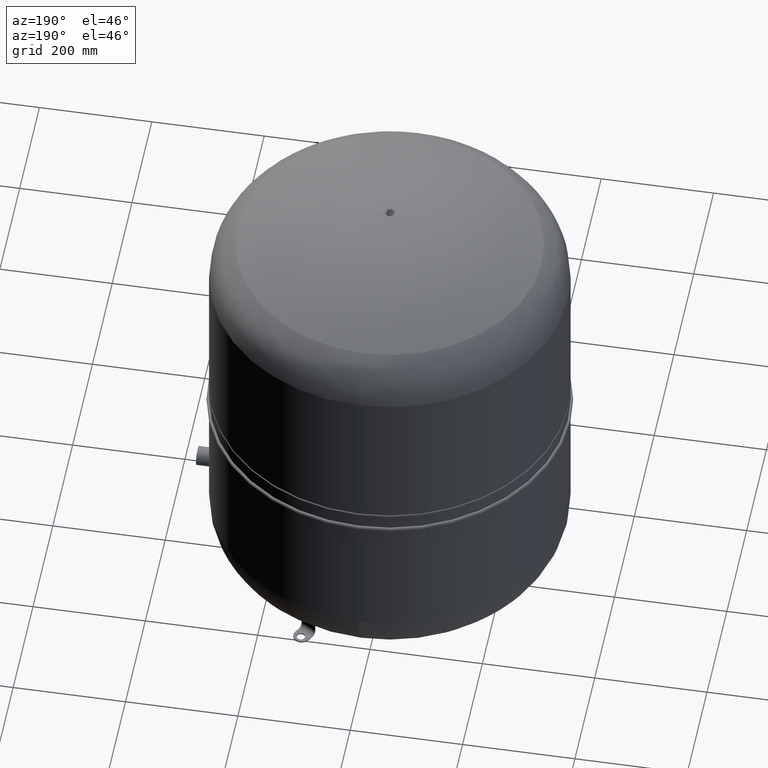
[diagram: clean part render]
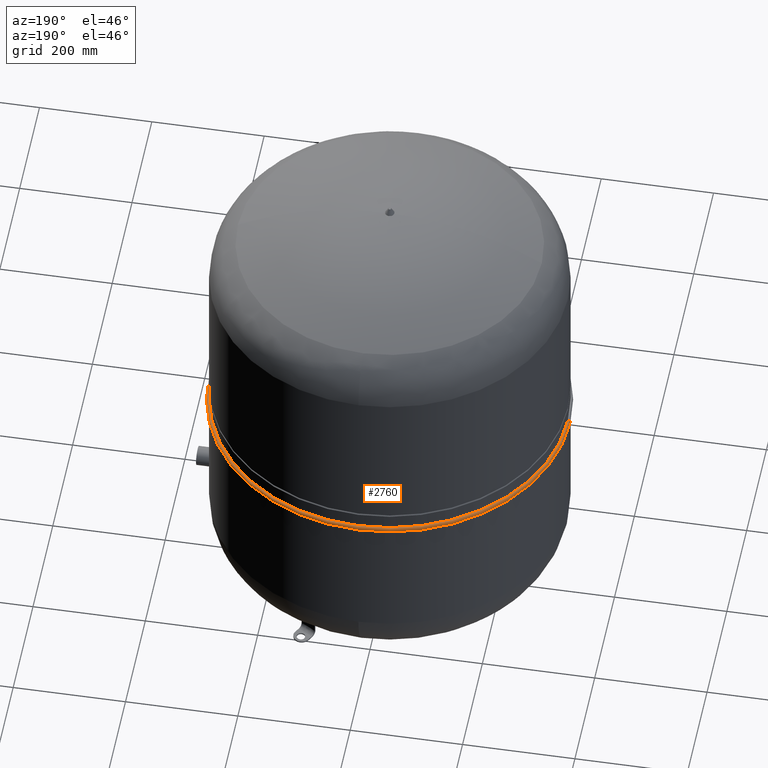
[diagram: same view with one face highlighted and labeled with its STEP entity id]
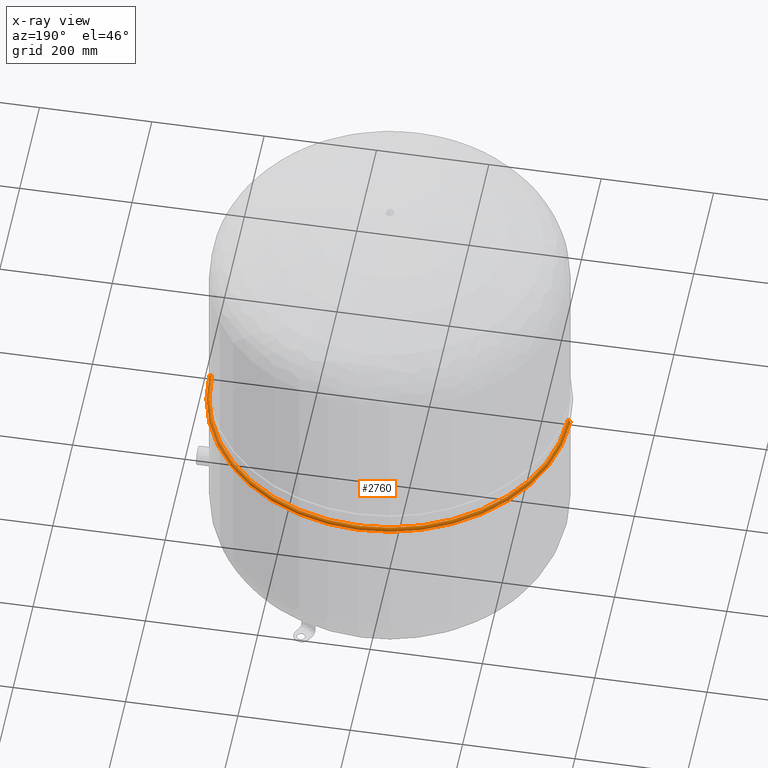
[diagram: x-ray of the same camera — body ghosted, the highlighted face saturated]
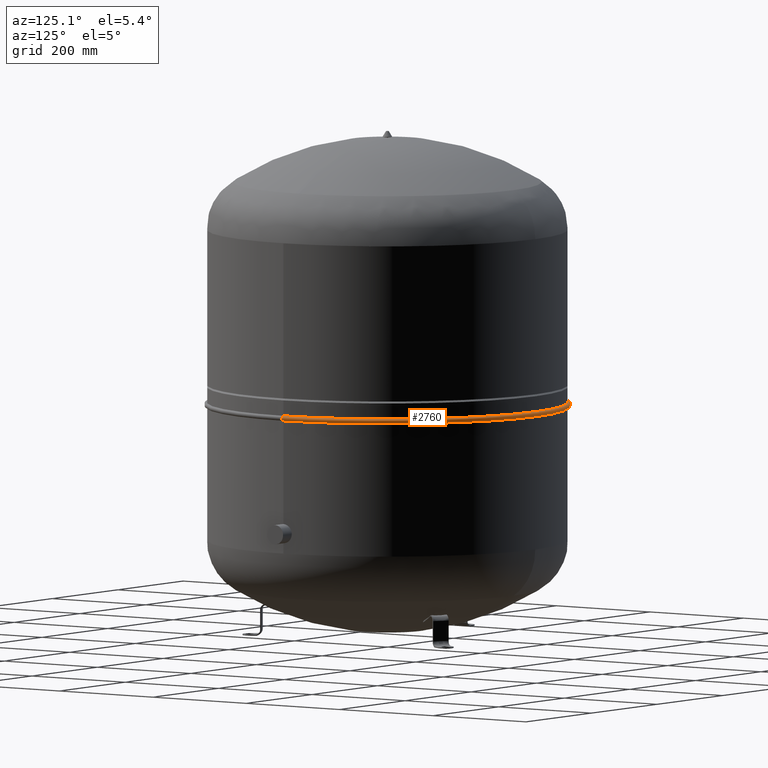
[diagram: same view with one face highlighted and labeled with its STEP entity id]
A machine part, auxiliary view. The second image highlights one B-rep face of the part: STEP entity #2760.
The next image is the same camera in x-ray: the body ghosted, the highlighted face saturated — about 0% of this face is hidden behind the body in this view.
A second angle (auxiliary view) of the same face is appended — the face is thin or edge-on in the first view.
In plain terms, the highlighted toroidal blend (fillet) surface has major radius 317 mm and minor (blend) radius 4.4 mm.
Its self-contained STEP definition (entity closure, byte-faithful):
#2616=CARTESIAN_POINT('',(316.99999999999989,0.0,412.39999999999998));
#2617=VERTEX_POINT('',#2616);
#2625=CARTESIAN_POINT('',(-316.99999999999989,-3.882002E-014,412.40000000000003));
#2626=VERTEX_POINT('',#2625);
#2648=CARTESIAN_POINT('',(316.99999999999994,0.0,403.60000000000002));
#2649=VERTEX_POINT('',#2648);
#2650=CARTESIAN_POINT('',(316.99999999999989,0.0,408.00000000000006));
#2651=DIRECTION('',(0.0,1.0,0.0));
#2652=DIRECTION('',(1.0,0.0,0.0));
#2653=AXIS2_PLACEMENT_3D('',#2650,#2651,#2652);
#2654=CIRCLE('',#2653,4.4);
#2655=EDGE_CURVE('',#2617,#2649,#2654,.T.);
#2658=CARTESIAN_POINT('',(-316.99999999999994,-3.882002E-014,403.60000000000002));
#2659=VERTEX_POINT('',#2658);
#2660=CARTESIAN_POINT('',(-317.0,-3.882002E-014,408.00000000000006));
#2661=DIRECTION('',(0.0,-1.0,0.0));
#2662=DIRECTION('',(-1.0,0.0,0.0));
#2663=AXIS2_PLACEMENT_3D('',#2660,#2661,#2662);
#2664=CIRCLE('',#2663,4.4);
#2665=EDGE_CURVE('',#2626,#2659,#2664,.T.);
#2733=CARTESIAN_POINT('',(-2.408446E-015,0.0,403.60000000000002));
#2734=DIRECTION('',(0.0,0.0,1.0));
#2735=DIRECTION('',(1.0,0.0,0.0));
#2736=AXIS2_PLACEMENT_3D('',#2733,#2734,#2735);
#2737=CIRCLE('',#2736,316.99999999999994);
#2738=EDGE_CURVE('',#2649,#2659,#2737,.T.);
#2743=CARTESIAN_POINT('',(-3.552714E-014,0.0,408.00000000000006));
#2744=DIRECTION('',(6.112808E-017,0.0,1.0));
#2745=DIRECTION('',(1.0,0.0,0.0));
#2746=AXIS2_PLACEMENT_3D('',#2743,#2744,#2745);
#2747=TOROIDAL_SURFACE('',#2746,316.99999999999994,4.4);
#2748=ORIENTED_EDGE('',*,*,#2655,.T.);
#2749=ORIENTED_EDGE('',*,*,#2738,.T.);
#2750=ORIENTED_EDGE('',*,*,#2665,.F.);
#2751=CARTESIAN_POINT('',(-1.870519E-015,0.0,412.40000000000003));
#2752=DIRECTION('',(0.0,0.0,1.0));
#2753=DIRECTION('',(1.0,0.0,0.0));
#2754=AXIS2_PLACEMENT_3D('',#2751,#2752,#2753);
#2755=CIRCLE('',#2754,316.99999999999989);
#2756=EDGE_CURVE('',#2617,#2626,#2755,.T.);
#2757=ORIENTED_EDGE('',*,*,#2756,.F.);
#2758=EDGE_LOOP('',(#2748,#2749,#2750,#2757));
#2759=FACE_OUTER_BOUND('',#2758,.T.);
#2760=ADVANCED_FACE('',(#2759),#2747,.T.);